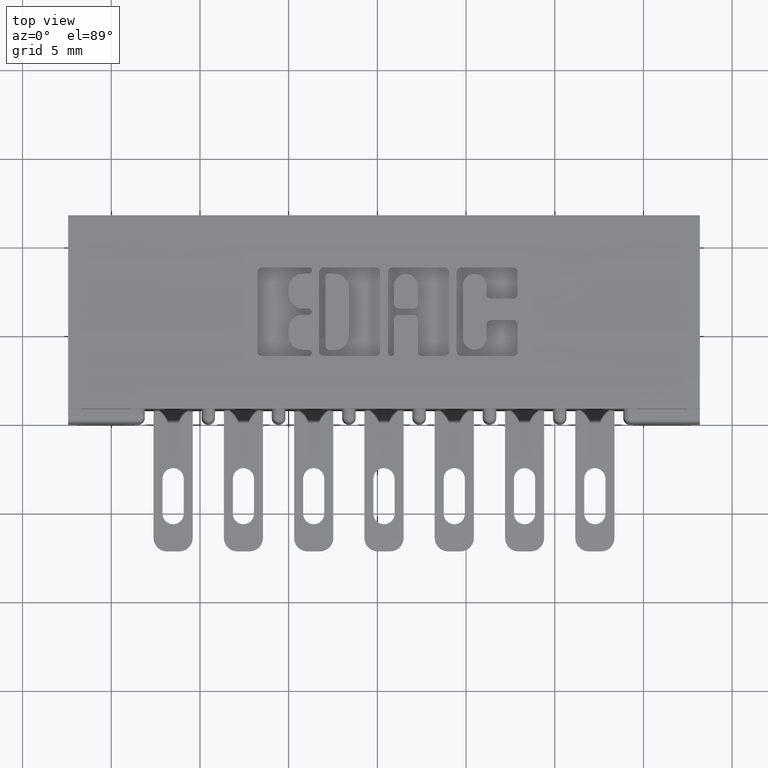
[diagram: clean part render]
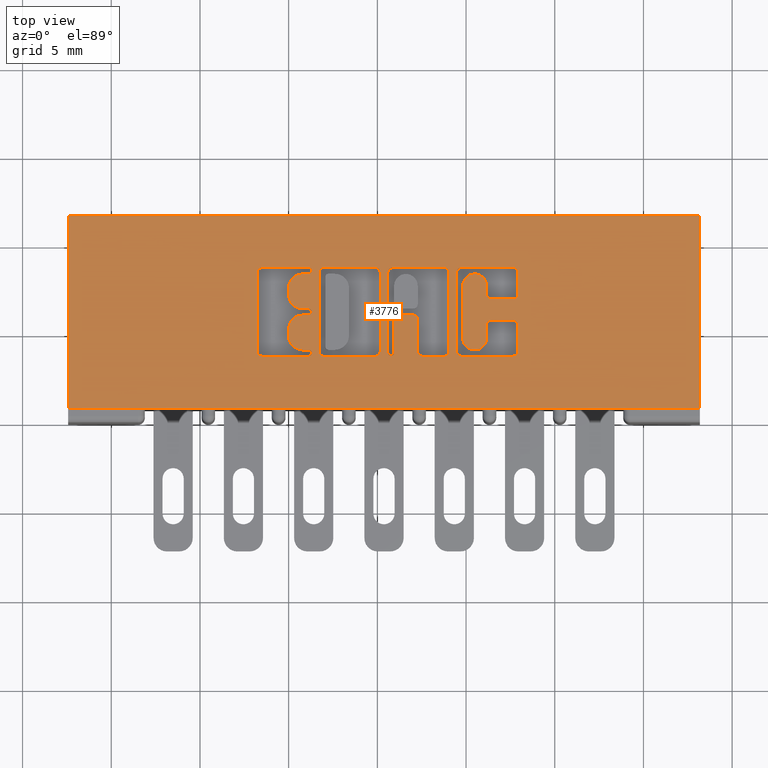
[diagram: same view with one face highlighted and labeled with its STEP entity id]
A machine part, top view. The second image highlights one B-rep face of the part: STEP entity #3776.
In plain terms, the highlighted planar face has unit normal (0, 0, -1).
Its self-contained STEP definition (entity closure, byte-faithful):
#30 = CARTESIAN_POINT ( 'NONE',  ( -0.0000000000000000000, 0.3299147637527387600, 0.0000000000000000000 ) ) ;
#53 = VERTEX_POINT ( 'NONE', #9856 ) ;
#116 = ORIENTED_EDGE ( 'NONE', *, *, #10471, .T. ) ;
#126 = ORIENTED_EDGE ( 'NONE', *, *, #1045, .F. ) ;
#162 = AXIS2_PLACEMENT_3D ( 'NONE', #9851, #6609, #9423 ) ;
#172 = DIRECTION ( 'NONE',  ( 1.000000000000000000, 0.0000000000000000000, 0.0000000000000000000 ) ) ;
#189 = DIRECTION ( 'NONE',  ( -1.000000000000000000, 0.0000000000000000000, 0.0000000000000000000 ) ) ;
#204 = AXIS2_PLACEMENT_3D ( 'NONE', #4688, #6850, #5149 ) ;
#245 = CARTESIAN_POINT ( 'NONE',  ( -0.0000000000000000000, 0.1473432979619862200, 0.0000000000000000000 ) ) ;
#246 = ORIENTED_EDGE ( 'NONE', *, *, #251, .T. ) ;
#249 = CARTESIAN_POINT ( 'NONE',  ( 0.8186370600050839600, 0.2386290308573598400, 0.0000000000000000000 ) ) ;
#251 = EDGE_CURVE ( 'NONE', #10532, #3573, #2536, .T. ) ;
#267 = AXIS2_PLACEMENT_3D ( 'NONE', #6127, #6198, #9625 ) ;
#290 = VERTEX_POINT ( 'NONE', #6991 ) ;
#296 = DIRECTION ( 'NONE',  ( 1.000000000000000000, 0.0000000000000000000, 0.0000000000000000000 ) ) ;
#321 = CARTESIAN_POINT ( 'NONE',  ( 0.8186370600051253700, 0.3299147637527387600, 0.0000000000000000000 ) ) ;
#342 = DIRECTION ( 'NONE',  ( -0.0000000000000000000, 1.000000000000000000, -0.0000000000000000000 ) ) ;
#356 = VERTEX_POINT ( 'NONE', #7784 ) ;
#357 = DIRECTION ( 'NONE',  ( -0.0000000000000000000, 0.0000000000000000000, 1.000000000000000000 ) ) ;
#387 = CARTESIAN_POINT ( 'NONE',  ( 0.8186370600050839600, 0.2837811137948613700, 0.0000000000000000000 ) ) ;
#397 = VERTEX_POINT ( 'NONE', #4811 ) ;
#403 = VERTEX_POINT ( 'NONE', #2986 ) ;
#427 = ORIENTED_EDGE ( 'NONE', *, *, #2236, .F. ) ;
#437 = DIRECTION ( 'NONE',  ( 1.000000000000000000, 0.0000000000000000000, 0.0000000000000000000 ) ) ;
#452 = DIRECTION ( 'NONE',  ( -0.0000000000000000000, 0.0000000000000000000, 1.000000000000000000 ) ) ;
#456 = CARTESIAN_POINT ( 'NONE',  ( 1.285862961706131900, 0.3338410318342139900, 0.0000000000000000000 ) ) ;
#469 = CARTESIAN_POINT ( 'NONE',  ( 0.8321336065353512900, 0.3367857328953892700, 0.0000000000000000000 ) ) ;
#474 = DIRECTION ( 'NONE',  ( -0.0000000000000000000, 0.0000000000000000000, 1.000000000000000000 ) ) ;
#524 = CARTESIAN_POINT ( 'NONE',  ( -0.0000000000000000000, 0.1473432979619862200, 0.0000000000000000000 ) ) ;
#533 = CARTESIAN_POINT ( 'NONE',  ( 0.8549550397591692000, 0.0000000000000000000, 0.0000000000000000000 ) ) ;
#632 = DIRECTION ( 'NONE',  ( 0.0000000000000000000, -1.000000000000000000, 0.0000000000000000000 ) ) ;
#651 = CARTESIAN_POINT ( 'NONE',  ( -8.177847276076834400E-015, 0.2386290308573163500, 0.0000000000000000000 ) ) ;
#670 = EDGE_CURVE ( 'NONE', #5741, #8689, #948, .T. ) ;
#675 = EDGE_CURVE ( 'NONE', #8563, #10460, #958, .T. ) ;
#693 = ORIENTED_EDGE ( 'NONE', *, *, #10239, .F. ) ;
#707 = DIRECTION ( 'NONE',  ( -1.000000000000000000, 0.0000000000000000000, 0.0000000000000000000 ) ) ;
#717 = CARTESIAN_POINT ( 'NONE',  ( 1.170038053301299500, 0.3338410318342131500, 0.0000000000000000000 ) ) ;
#726 = ORIENTED_EDGE ( 'NONE', *, *, #7959, .F. ) ;
#745 = ORIENTED_EDGE ( 'NONE', *, *, #9064, .T. ) ;
#762 = ORIENTED_EDGE ( 'NONE', *, *, #675, .F. ) ;
#780 = ORIENTED_EDGE ( 'NONE', *, *, #9626, .F. ) ;
#791 = AXIS2_PLACEMENT_3D ( 'NONE', #9205, #2286, #8860 ) ;
#799 = DIRECTION ( 'NONE',  ( -1.000000000000000000, 0.0000000000000000000, 0.0000000000000000000 ) ) ;
#814 = DIRECTION ( 'NONE',  ( -0.0000000000000000000, 0.0000000000000000000, 1.000000000000000000 ) ) ;
#819 = ORIENTED_EDGE ( 'NONE', *, *, #4571, .F. ) ;
#834 = VERTEX_POINT ( 'NONE', #5303 ) ;
#865 = DIRECTION ( 'NONE',  ( 1.000000000000000000, 0.0000000000000000000, 0.0000000000000000000 ) ) ;
#869 = DIRECTION ( 'NONE',  ( 1.000000000000000000, 0.0000000000000000000, 0.0000000000000000000 ) ) ;
#870 = CARTESIAN_POINT ( 'NONE',  ( 0.2979999999999999900, 0.03100000000000000000, 0.0000000000000000000 ) ) ;
#872 = ORIENTED_EDGE ( 'NONE', *, *, #10657, .T. ) ;
#882 = VECTOR ( 'NONE', #9310, 39.37007874015748100 ) ;
#887 = DIRECTION ( 'NONE',  ( -0.0000000000000000000, 0.0000000000000000000, 1.000000000000000000 ) ) ;
#896 = CIRCLE ( 'NONE', #5847, 0.02625691779518036400 ) ;
#904 = DIRECTION ( 'NONE',  ( 1.000000000000000000, 0.0000000000000000000, 0.0000000000000000000 ) ) ;
#906 = DIRECTION ( 'NONE',  ( -0.0000000000000000000, 0.0000000000000000000, 1.000000000000000000 ) ) ;
#912 = AXIS2_PLACEMENT_3D ( 'NONE', #9646, #474, #9337 ) ;
#914 = VECTOR ( 'NONE', #869, 39.37007874015748100 ) ;
#928 = CARTESIAN_POINT ( 'NONE',  ( 0.8321336065353512900, 0.3367857328953892700, 0.0000000000000000000 ) ) ;
#948 = LINE ( 'NONE', #524, #914 ) ;
#952 = VERTEX_POINT ( 'NONE', #2714 ) ;
#958 = LINE ( 'NONE', #1111, #971 ) ;
#961 = DIRECTION ( 'NONE',  ( 1.000000000000000000, 0.0000000000000000000, 0.0000000000000000000 ) ) ;
#971 = VECTOR ( 'NONE', #707, 39.37007874015748100 ) ;
#986 = DIRECTION ( 'NONE',  ( -0.0000000000000000000, 0.0000000000000000000, 1.000000000000000000 ) ) ;
#1001 = ORIENTED_EDGE ( 'NONE', *, *, #9613, .T. ) ;
#1006 = CARTESIAN_POINT ( 'NONE',  ( 1.143044960240806600, 0.1571589681657839000, 0.0000000000000000000 ) ) ;
#1014 = ORIENTED_EDGE ( 'NONE', *, *, #3350, .T. ) ;
#1026 = VERTEX_POINT ( 'NONE', #8227 ) ;
#1028 = ORIENTED_EDGE ( 'NONE', *, *, #10087, .T. ) ;
#1045 = EDGE_CURVE ( 'NONE', #4047, #3573, #6751, .T. ) ;
#1068 = ORIENTED_EDGE ( 'NONE', *, *, #8806, .T. ) ;
#1072 = VECTOR ( 'NONE', #799, 39.37007874015748100 ) ;
#1088 = DIRECTION ( 'NONE',  ( -0.0000000000000000000, 0.0000000000000000000, 1.000000000000000000 ) ) ;
#1092 = CARTESIAN_POINT ( 'NONE',  ( 0.8186370600050839600, 0.2072188862052035700, 0.0000000000000000000 ) ) ;
#1111 = CARTESIAN_POINT ( 'NONE',  ( 0.0000000000000000000, 0.3436567020380540400, 0.0000000000000000000 ) ) ;
#1130 = CARTESIAN_POINT ( 'NONE',  ( 1.083660155507788000, 0.1571589681657908600, 0.0000000000000000000 ) ) ;
#1149 = CARTESIAN_POINT ( 'NONE',  ( 1.285862961706167000, 0.2744562271012366800, 0.0000000000000000000 ) ) ;
#1174 = DIRECTION ( 'NONE',  ( 1.000000000000000000, 0.0000000000000000000, 0.0000000000000000000 ) ) ;
#1177 = CARTESIAN_POINT ( 'NONE',  ( 0.0000000000000000000, 0.2523709691426868600, 0.0000000000000000000 ) ) ;
#1180 = LINE ( 'NONE', #10487, #8166 ) ;
#1185 = CARTESIAN_POINT ( 'NONE',  ( 0.0000000000000000000, 0.4600000000000000200, 0.0000000000000000000 ) ) ;
#1189 = DIRECTION ( 'NONE',  ( 1.000000000000000000, 0.0000000000000000000, 0.0000000000000000000 ) ) ;
#1202 = AXIS2_PLACEMENT_3D ( 'NONE', #8207, #10767, #6965 ) ;
#1216 = CARTESIAN_POINT ( 'NONE',  ( 0.7180264404161154100, 0.1571589681657929700, 0.0000000000000000000 ) ) ;
#1227 = DIRECTION ( 'NONE',  ( -1.000000000000000000, 0.0000000000000000000, 0.0000000000000000000 ) ) ;
#1238 = VECTOR ( 'NONE', #5711, 39.37007874015748100 ) ;
#1240 = CARTESIAN_POINT ( 'NONE',  ( 0.0000000000000000000, 0.1473432979619876400, 0.0000000000000000000 ) ) ;
#1256 = DIRECTION ( 'NONE',  ( -0.0000000000000000000, 0.0000000000000000000, 1.000000000000000000 ) ) ;
#1271 = DIRECTION ( 'NONE',  ( -1.000000000000000000, -0.0000000000000000000, -0.0000000000000000000 ) ) ;
#1280 = LINE ( 'NONE', #10740, #9913 ) ;
#1283 = CIRCLE ( 'NONE', #1894, 0.03141014465221578900 ) ;
#1307 = CARTESIAN_POINT ( 'NONE',  ( 1.998000000000000000, 0.03100000000000000000, 0.0000000000000000000 ) ) ;
#1310 = AXIS2_PLACEMENT_3D ( 'NONE', #5151, #5341, #5245 ) ;
#1313 = VERTEX_POINT ( 'NONE', #5250 ) ;
#1316 = ORIENTED_EDGE ( 'NONE', *, *, #2542, .T. ) ;
#1342 = DIRECTION ( 'NONE',  ( 1.000000000000000000, 0.0000000000000000000, 0.0000000000000000000 ) ) ;
#1365 = DIRECTION ( 'NONE',  ( -0.0000000000000000000, 0.0000000000000000000, 1.000000000000000000 ) ) ;
#1383 = CARTESIAN_POINT ( 'NONE',  ( 0.8321336065353099900, 0.2455000000000233700, 0.0000000000000000000 ) ) ;
#1485 = CARTESIAN_POINT ( 'NONE',  ( 1.007588711428330800, 0.0000000000000000000, 0.0000000000000000000 ) ) ;
#1488 = CARTESIAN_POINT ( 'NONE',  ( 0.0000000000000000000, 0.4600000000000000200, 0.0000000000000000000 ) ) ;
#1518 = ORIENTED_EDGE ( 'NONE', *, *, #9062, .F. ) ;
#1539 = VERTEX_POINT ( 'NONE', #1644 ) ;
#1542 = VERTEX_POINT ( 'NONE', #1713 ) ;
#1549 = CARTESIAN_POINT ( 'NONE',  ( 1.133229290037010500, 0.1571589681657839000, 0.0000000000000000000 ) ) ;
#1570 = ORIENTED_EDGE ( 'NONE', *, *, #8645, .F. ) ;
#1587 = ORIENTED_EDGE ( 'NONE', *, *, #4452, .F. ) ;
#1595 = AXIS2_PLACEMENT_3D ( 'NONE', #6478, #6474, #6441 ) ;
#1610 = AXIS2_PLACEMENT_3D ( 'NONE', #8778, #10398, #10426 ) ;
#1640 = VECTOR ( 'NONE', #8748, 39.37007874015748100 ) ;
#1644 = CARTESIAN_POINT ( 'NONE',  ( 1.236293827176977400, 0.2744562271012366300, 0.0000000000000000000 ) ) ;
#1648 = CARTESIAN_POINT ( 'NONE',  ( 0.7872269153529095600, 0.2985046191005228400, 0.0000000000000000000 ) ) ;
#1685 = DIRECTION ( 'NONE',  ( 1.000000000000000000, 0.0000000000000000000, 0.0000000000000000000 ) ) ;
#1713 = CARTESIAN_POINT ( 'NONE',  ( 1.295678631909972000, 0.2842718973050416500, 0.0000000000000000000 ) ) ;
#1735 = AXIS2_PLACEMENT_3D ( 'NONE', #9575, #9576, #9823 ) ;
#1738 = ORIENTED_EDGE ( 'NONE', *, *, #3073, .F. ) ;
#1739 = DIRECTION ( 'NONE',  ( 0.0000000000000000000, 1.000000000000000000, -0.0000000000000000000 ) ) ;
#1762 = ORIENTED_EDGE ( 'NONE', *, *, #9030, .T. ) ;
#1796 = LINE ( 'NONE', #245, #10419 ) ;
#1815 = CARTESIAN_POINT ( 'NONE',  ( 1.285862961706168300, 0.3436567020380540400, 0.0000000000000000000 ) ) ;
#1819 = CARTESIAN_POINT ( 'NONE',  ( 1.073844485303984600, 0.0000000000000000000, 0.0000000000000000000 ) ) ;
#1827 = DIRECTION ( 'NONE',  ( 1.000000000000000000, 0.0000000000000000000, 0.0000000000000000000 ) ) ;
#1858 = AXIS2_PLACEMENT_3D ( 'NONE', #10858, #2339, #9704 ) ;
#1894 = AXIS2_PLACEMENT_3D ( 'NONE', #2338, #2336, #2321 ) ;
#1896 = CIRCLE ( 'NONE', #1310, 0.006870969142663458500 ) ;
#1899 = AXIS2_PLACEMENT_3D ( 'NONE', #7260, #7248, #8329 ) ;
#1951 = VECTOR ( 'NONE', #9911, 39.37007874015748100 ) ;
#2021 = CARTESIAN_POINT ( 'NONE',  ( 1.143044960240806600, 0.0000000000000000000, 0.0000000000000000000 ) ) ;
#2063 = AXIS2_PLACEMENT_3D ( 'NONE', #9225, #9215, #9214 ) ;
#2087 = VERTEX_POINT ( 'NONE', #6036 ) ;
#2110 = CARTESIAN_POINT ( 'NONE',  ( 1.170038053301265300, 0.1473432979619862200, 0.0000000000000000000 ) ) ;
#2124 = VERTEX_POINT ( 'NONE', #5079 ) ;
#2142 = CARTESIAN_POINT ( 'NONE',  ( 0.9805956183678620200, 0.1473432979619862200, 0.0000000000000000000 ) ) ;
#2178 = AXIS2_PLACEMENT_3D ( 'NONE', #2890, #2873, #3507 ) ;
#2180 = CARTESIAN_POINT ( 'NONE',  ( -0.0000000000000000000, 0.3436567020380096300, 0.0000000000000000000 ) ) ;
#2194 = VERTEX_POINT ( 'NONE', #4842 ) ;
#2236 = EDGE_CURVE ( 'NONE', #10532, #3562, #8177, .T. ) ;
#2252 = ORIENTED_EDGE ( 'NONE', *, *, #8629, .F. ) ;
#2286 = DIRECTION ( 'NONE',  ( -0.0000000000000000000, 0.0000000000000000000, 1.000000000000000000 ) ) ;
#2321 = DIRECTION ( 'NONE',  ( 1.000000000000000000, 0.0000000000000000000, 0.0000000000000000000 ) ) ;
#2322 = VECTOR ( 'NONE', #632, 39.37007874015748100 ) ;
#2336 = DIRECTION ( 'NONE',  ( -0.0000000000000000000, 0.0000000000000000000, 1.000000000000000000 ) ) ;
#2338 = CARTESIAN_POINT ( 'NONE',  ( 0.8186370600051253700, 0.2985046191005228400, 0.0000000000000000000 ) ) ;
#2339 = DIRECTION ( 'NONE',  ( -0.0000000000000000000, 0.0000000000000000000, 1.000000000000000000 ) ) ;
#2478 = VECTOR ( 'NONE', #4221, 39.37007874015748100 ) ;
#2526 = VECTOR ( 'NONE', #10756, 39.37007874015748100 ) ;
#2536 = LINE ( 'NONE', #1485, #2526 ) ;
#2542 = EDGE_CURVE ( 'NONE', #4886, #356, #10561, .T. ) ;
#2561 = ORIENTED_EDGE ( 'NONE', *, *, #7836, .T. ) ;
#2631 = AXIS2_PLACEMENT_3D ( 'NONE', #1185, #3412, #4581 ) ;
#2714 = CARTESIAN_POINT ( 'NONE',  ( 1.133229290037010500, 0.1473432979619876400, 0.0000000000000000000 ) ) ;
#2734 = AXIS2_PLACEMENT_3D ( 'NONE', #456, #357, #296 ) ;
#2758 = AXIS2_PLACEMENT_3D ( 'NONE', #717, #887, #865 ) ;
#2782 = AXIS2_PLACEMENT_3D ( 'NONE', #928, #906, #1174 ) ;
#2824 = AXIS2_PLACEMENT_3D ( 'NONE', #9428, #9329, #9323 ) ;
#2835 = DIRECTION ( 'NONE',  ( 0.0000000000000000000, -1.000000000000000000, 0.0000000000000000000 ) ) ;
#2853 = LINE ( 'NONE', #4689, #7279 ) ;
#2873 = DIRECTION ( 'NONE',  ( -0.0000000000000000000, 0.0000000000000000000, 1.000000000000000000 ) ) ;
#2874 = EDGE_CURVE ( 'NONE', #7382, #9115, #10633, .T. ) ;
#2890 = CARTESIAN_POINT ( 'NONE',  ( 0.8647707099630100900, 0.3338410318342131500, 0.0000000000000000000 ) ) ;
#2920 = VERTEX_POINT ( 'NONE', #1648 ) ;
#2933 = DIRECTION ( 'NONE',  ( 1.000000000000000000, 0.0000000000000000000, 0.0000000000000000000 ) ) ;
#2968 = VERTEX_POINT ( 'NONE', #8200 ) ;
#2981 = DIRECTION ( 'NONE',  ( 1.000000000000000000, 0.0000000000000000000, 0.0000000000000000000 ) ) ;
#2986 = CARTESIAN_POINT ( 'NONE',  ( 1.064028815100188200, 0.2386290308573528200, 0.0000000000000000000 ) ) ;
#3001 = VECTOR ( 'NONE', #1271, 39.37007874015748100 ) ;
#3061 = VERTEX_POINT ( 'NONE', #10892 ) ;
#3073 = EDGE_CURVE ( 'NONE', #4886, #3442, #5454, .T. ) ;
#3087 = CARTESIAN_POINT ( 'NONE',  ( 1.285862961706153000, 0.2170345564089734600, 0.0000000000000000000 ) ) ;
#3135 = CARTESIAN_POINT ( 'NONE',  ( 0.7180264404161154100, 0.0000000000000000000, 0.0000000000000000000 ) ) ;
#3152 = VERTEX_POINT ( 'NONE', #9336 ) ;
#3181 = EDGE_LOOP ( 'NONE', ( #745, #693, #3195, #2252, #1762, #1738, #1316, #1068, #1028, #872, #1014, #427, #246, #126 ) ) ;
#3195 = ORIENTED_EDGE ( 'NONE', *, *, #10072, .T. ) ;
#3227 = VERTEX_POINT ( 'NONE', #4652 ) ;
#3229 = CARTESIAN_POINT ( 'NONE',  ( 1.295678631909940300, 0.0000000000000000000, 0.0000000000000000000 ) ) ;
#3348 = DIRECTION ( 'NONE',  ( 1.000000000000000000, 0.0000000000000000000, 0.0000000000000000000 ) ) ;
#3350 = EDGE_CURVE ( 'NONE', #6254, #3562, #2853, .T. ) ;
#3358 = VERTEX_POINT ( 'NONE', #9598 ) ;
#3366 = VECTOR ( 'NONE', #2835, 39.37007874015748100 ) ;
#3412 = DIRECTION ( 'NONE',  ( 0.0000000000000000000, 0.0000000000000000000, -1.000000000000000000 ) ) ;
#3442 = VERTEX_POINT ( 'NONE', #8676 ) ;
#3507 = DIRECTION ( 'NONE',  ( 1.000000000000000000, 0.0000000000000000000, 0.0000000000000000000 ) ) ;
#3538 = LINE ( 'NONE', #5669, #7763 ) ;
#3562 = VERTEX_POINT ( 'NONE', #10461 ) ;
#3573 = VERTEX_POINT ( 'NONE', #10737 ) ;
#3703 = VERTEX_POINT ( 'NONE', #1216 ) ;
#3715 = CARTESIAN_POINT ( 'NONE',  ( 0.8647707099629760000, 0.1473432979619862200, 0.0000000000000000000 ) ) ;
#3716 = CARTESIAN_POINT ( 'NONE',  ( 0.7278421106199379800, 0.3436567020380357200, 0.0000000000000000000 ) ) ;
#3776 = ADVANCED_FACE ( 'NONE', ( #4734, #4449, #6663, #8466, #6432 ), #5946, .F. ) ;
#3832 = VECTOR ( 'NONE', #9774, 39.37007874015748100 ) ;
#3862 = VERTEX_POINT ( 'NONE', #6608 ) ;
#3900 = CARTESIAN_POINT ( 'NONE',  ( -1.013135022034649200E-015, 0.1473432979619830100, 0.0000000000000000000 ) ) ;
#3925 = CARTESIAN_POINT ( 'NONE',  ( 0.7872269153529277700, 0.1924953808994934200, 0.0000000000000000000 ) ) ;
#3941 = DIRECTION ( 'NONE',  ( 1.000000000000000000, 0.0000000000000000000, 0.0000000000000000000 ) ) ;
#3949 = VERTEX_POINT ( 'NONE', #5856 ) ;
#3954 = VERTEX_POINT ( 'NONE', #7278 ) ;
#3959 = DIRECTION ( 'NONE',  ( 1.000000000000000000, 0.0000000000000000000, 0.0000000000000000000 ) ) ;
#3963 = VERTEX_POINT ( 'NONE', #249 ) ;
#3966 = DIRECTION ( 'NONE',  ( -0.0000000000000000000, 0.0000000000000000000, 1.000000000000000000 ) ) ;
#3995 = LINE ( 'NONE', #1177, #1072 ) ;
#4021 = DIRECTION ( 'NONE',  ( -0.0000000000000000000, 0.0000000000000000000, 1.000000000000000000 ) ) ;
#4047 = VERTEX_POINT ( 'NONE', #10296 ) ;
#4075 = DIRECTION ( 'NONE',  ( -1.000000000000000000, -1.189163988687022500E-013, 0.0000000000000000000 ) ) ;
#4090 = VERTEX_POINT ( 'NONE', #7559 ) ;
#4100 = DIRECTION ( 'NONE',  ( -0.0000000000000000000, 0.0000000000000000000, 1.000000000000000000 ) ) ;
#4123 = CARTESIAN_POINT ( 'NONE',  ( 0.8390045756779976900, 0.1542142671046509700, 0.0000000000000000000 ) ) ;
#4126 = CARTESIAN_POINT ( 'NONE',  ( 0.0000000000000000000, 0.3436567020380357200, 0.0000000000000000000 ) ) ;
#4144 = EDGE_CURVE ( 'NONE', #9149, #2087, #1796, .T. ) ;
#4158 = VERTEX_POINT ( 'NONE', #5464 ) ;
#4177 = CARTESIAN_POINT ( 'NONE',  ( 1.236293827176966800, 0.2170345564089726000, 0.0000000000000000000 ) ) ;
#4188 = CARTESIAN_POINT ( 'NONE',  ( 1.295678631909940300, 0.2170345564089734600, 0.0000000000000000000 ) ) ;
#4206 = CIRCLE ( 'NONE', #267, 0.009815670203806345400 ) ;
#4218 = VERTEX_POINT ( 'NONE', #6530 ) ;
#4221 = DIRECTION ( 'NONE',  ( -1.000000000000000000, 0.0000000000000000000, 0.0000000000000000000 ) ) ;
#4237 = CARTESIAN_POINT ( 'NONE',  ( 1.073844485303984600, 0.1571589681657908600, 0.0000000000000000000 ) ) ;
#4238 = CARTESIAN_POINT ( 'NONE',  ( 0.9805956183678961000, 0.3436567020380540400, 0.0000000000000000000 ) ) ;
#4279 = VERTEX_POINT ( 'NONE', #7710 ) ;
#4295 = DIRECTION ( 'NONE',  ( -0.0000000000000000000, 0.0000000000000000000, 1.000000000000000000 ) ) ;
#4314 = CARTESIAN_POINT ( 'NONE',  ( 0.7278421106199379800, 0.3338410318342131500, 0.0000000000000000000 ) ) ;
#4362 = LINE ( 'NONE', #7667, #6594 ) ;
#4369 = DIRECTION ( 'NONE',  ( 1.000000000000000000, 6.876017002796114900E-015, 0.0000000000000000000 ) ) ;
#4380 = DIRECTION ( 'NONE',  ( 0.0000000000000000000, -1.000000000000000000, 0.0000000000000000000 ) ) ;
#4437 = LINE ( 'NONE', #8782, #1640 ) ;
#4449 = FACE_BOUND ( 'NONE', #8232, .T. ) ;
#4452 = EDGE_CURVE ( 'NONE', #5908, #397, #4990, .T. ) ;
#4455 = EDGE_CURVE ( 'NONE', #7587, #6303, #10663, .T. ) ;
#4467 = EDGE_CURVE ( 'NONE', #3703, #3949, #6877, .T. ) ;
#4488 = EDGE_CURVE ( 'NONE', #1539, #8767, #10308, .T. ) ;
#4491 = DIRECTION ( 'NONE',  ( 1.000000000000000000, 0.0000000000000000000, 0.0000000000000000000 ) ) ;
#4568 = AXIS2_PLACEMENT_3D ( 'NONE', #387, #452, #437 ) ;
#4569 = EDGE_CURVE ( 'NONE', #8767, #1542, #10798, .T. ) ;
#4571 = EDGE_CURVE ( 'NONE', #6303, #1539, #7327, .T. ) ;
#4581 = DIRECTION ( 'NONE',  ( -1.000000000000000000, 0.0000000000000000000, -0.0000000000000000000 ) ) ;
#4651 = EDGE_CURVE ( 'NONE', #53, #6356, #1180, .T. ) ;
#4652 = CARTESIAN_POINT ( 'NONE',  ( 1.160222383097458500, 0.1571589681657929700, 0.0000000000000000000 ) ) ;
#4665 = EDGE_CURVE ( 'NONE', #6908, #3152, #1896, .T. ) ;
#4688 = CARTESIAN_POINT ( 'NONE',  ( 0.8321336065353355200, 0.1542142671046509700, 0.0000000000000000000 ) ) ;
#4689 = CARTESIAN_POINT ( 'NONE',  ( 1.021330649713647000, 0.0000000000000000000, 0.0000000000000000000 ) ) ;
#4711 = EDGE_CURVE ( 'NONE', #7587, #6356, #7459, .T. ) ;
#4734 = FACE_BOUND ( 'NONE', #4767, .T. ) ;
#4767 = EDGE_LOOP ( 'NONE', ( #8060, #8026, #819, #9283, #7291, #7697, #2561, #8010, #8000, #7979, #7839, #7789, #7731, #7678, #8962, #8862, #7484, #8874, #8578, #8793 ) ) ;
#4811 = CARTESIAN_POINT ( 'NONE',  ( 0.8321336064154143400, 0.1610852362473132500, 0.0000000000000000000 ) ) ;
#4842 = CARTESIAN_POINT ( 'NONE',  ( 1.031146319917450200, 0.2386290308573516800, 0.0000000000000000000 ) ) ;
#4846 = AXIS2_PLACEMENT_3D ( 'NONE', #1383, #814, #1827 ) ;
#4850 = AXIS2_PLACEMENT_3D ( 'NONE', #7125, #986, #961 ) ;
#4853 = EDGE_CURVE ( 'NONE', #8689, #5194, #9544, .T. ) ;
#4865 = AXIS2_PLACEMENT_3D ( 'NONE', #1092, #1088, #1189 ) ;
#4868 = EDGE_CURVE ( 'NONE', #5194, #1026, #10791, .T. ) ;
#4871 = VECTOR ( 'NONE', #1342, 39.37007874015748100 ) ;
#4877 = CARTESIAN_POINT ( 'NONE',  ( 0.8186370600051095000, 0.1924953808994934200, 0.0000000000000000000 ) ) ;
#4886 = VERTEX_POINT ( 'NONE', #4237 ) ;
#4888 = CARTESIAN_POINT ( 'NONE',  ( -1.915567620543286900E-014, 0.1610852362472142700, 0.0000000000000000000 ) ) ;
#4890 = EDGE_CURVE ( 'NONE', #1026, #8563, #7316, .T. ) ;
#4921 = EDGE_CURVE ( 'NONE', #9846, #3227, #4362, .T. ) ;
#4923 = EDGE_CURVE ( 'NONE', #8642, #3061, #8623, .T. ) ;
#4979 = DIRECTION ( 'NONE',  ( 0.0000000000000000000, 1.000000000000000000, -0.0000000000000000000 ) ) ;
#4990 = CIRCLE ( 'NONE', #1899, 0.006870969142662229500 ) ;
#5009 = AXIS2_PLACEMENT_3D ( 'NONE', #1549, #1365, #904 ) ;
#5028 = VECTOR ( 'NONE', #9601, 39.37007874015748100 ) ;
#5079 = CARTESIAN_POINT ( 'NONE',  ( 1.133229290037013800, 0.3436567020380096300, 0.0000000000000000000 ) ) ;
#5121 = EDGE_CURVE ( 'NONE', #2087, #10337, #4206, .T. ) ;
#5134 = AXIS2_PLACEMENT_3D ( 'NONE', #469, #1256, #172 ) ;
#5147 = CIRCLE ( 'NONE', #5134, 0.006870969142648433200 ) ;
#5149 = DIRECTION ( 'NONE',  ( 1.000000000000000000, 0.0000000000000000000, 0.0000000000000000000 ) ) ;
#5151 = CARTESIAN_POINT ( 'NONE',  ( 0.8321336065353099900, 0.2455000000000233700, 0.0000000000000000000 ) ) ;
#5166 = EDGE_CURVE ( 'NONE', #3862, #5908, #5969, .T. ) ;
#5194 = VERTEX_POINT ( 'NONE', #7502 ) ;
#5195 = AXIS2_PLACEMENT_3D ( 'NONE', #4314, #4295, #3941 ) ;
#5199 = ORIENTED_EDGE ( 'NONE', *, *, #7362, .F. ) ;
#5221 = ORIENTED_EDGE ( 'NONE', *, *, #5166, .F. ) ;
#5245 = DIRECTION ( 'NONE',  ( 1.000000000000000000, 0.0000000000000000000, 0.0000000000000000000 ) ) ;
#5250 = CARTESIAN_POINT ( 'NONE',  ( 1.226478156973178900, 0.2170345564089717100, 0.0000000000000000000 ) ) ;
#5255 = EDGE_CURVE ( 'NONE', #10337, #7390, #6351, .T. ) ;
#5275 = VECTOR ( 'NONE', #189, 39.37007874015748100 ) ;
#5288 = VECTOR ( 'NONE', #8995, 39.37007874015748100 ) ;
#5303 = CARTESIAN_POINT ( 'NONE',  ( 1.700000000000000000, 0.4600000000000000200, 0.0000000000000000000 ) ) ;
#5341 = DIRECTION ( 'NONE',  ( -0.0000000000000000000, 0.0000000000000000000, 1.000000000000000000 ) ) ;
#5444 = CIRCLE ( 'NONE', #2782, 0.006870969142648433200 ) ;
#5454 = CIRCLE ( 'NONE', #10047, 0.009815670203803340800 ) ;
#5455 = CARTESIAN_POINT ( 'NONE',  ( 1.021330649713647000, 0.2288133606535486300, 0.0000000000000000000 ) ) ;
#5464 = CARTESIAN_POINT ( 'NONE',  ( 0.8321336065353512900, 0.3299147637527387600, 0.0000000000000000000 ) ) ;
#5532 = ORIENTED_EDGE ( 'NONE', *, *, #7321, .F. ) ;
#5559 = LINE ( 'NONE', #2180, #9392 ) ;
#5570 = LINE ( 'NONE', #9059, #5288 ) ;
#5578 = DIRECTION ( 'NONE',  ( 1.000000000000000000, 0.0000000000000000000, 0.0000000000000000000 ) ) ;
#5594 = EDGE_CURVE ( 'NONE', #3061, #834, #9830, .T. ) ;
#5669 = CARTESIAN_POINT ( 'NONE',  ( 0.0000000000000000000, 0.3436567020380540400, 0.0000000000000000000 ) ) ;
#5711 = DIRECTION ( 'NONE',  ( 1.000000000000000000, 0.0000000000000000000, 0.0000000000000000000 ) ) ;
#5716 = CARTESIAN_POINT ( 'NONE',  ( 1.226478156973165800, 0.3036578454992628900, 0.0000000000000000000 ) ) ;
#5741 = VERTEX_POINT ( 'NONE', #3715 ) ;
#5759 = EDGE_CURVE ( 'NONE', #2968, #4279, #5444, .T. ) ;
#5809 = CIRCLE ( 'NONE', #4846, 0.006870969142663458500 ) ;
#5839 = VERTEX_POINT ( 'NONE', #1006 ) ;
#5847 = AXIS2_PLACEMENT_3D ( 'NONE', #10922, #10763, #10758 ) ;
#5856 = CARTESIAN_POINT ( 'NONE',  ( 0.7278421106199184400, 0.1473432979619880000, 0.0000000000000000000 ) ) ;
#5908 = VERTEX_POINT ( 'NONE', #4123 ) ;
#5934 = EDGE_CURVE ( 'NONE', #8889, #9067, #10770, .T. ) ;
#5935 = EDGE_CURVE ( 'NONE', #9084, #9846, #10621, .T. ) ;
#5946 = PLANE ( 'NONE',  #2631 ) ;
#5969 = CIRCLE ( 'NONE', #204, 0.006870969142662229500 ) ;
#6036 = CARTESIAN_POINT ( 'NONE',  ( 1.285862961706134100, 0.1473432979619862200, 0.0000000000000000000 ) ) ;
#6068 = CIRCLE ( 'NONE', #2178, 0.009815670203840902800 ) ;
#6127 = CARTESIAN_POINT ( 'NONE',  ( 1.285862961706134100, 0.1571589681657929700, 0.0000000000000000000 ) ) ;
#6171 = LINE ( 'NONE', #533, #3832 ) ;
#6198 = DIRECTION ( 'NONE',  ( -0.0000000000000000000, 0.0000000000000000000, 1.000000000000000000 ) ) ;
#6225 = EDGE_CURVE ( 'NONE', #10460, #3954, #6068, .T. ) ;
#6254 = VERTEX_POINT ( 'NONE', #5455 ) ;
#6294 = CARTESIAN_POINT ( 'NONE',  ( 1.226478156973178900, 0.1873421540424560200, 0.0000000000000000000 ) ) ;
#6303 = VERTEX_POINT ( 'NONE', #10824 ) ;
#6311 = CIRCLE ( 'NONE', #7729, 0.009815670203788042300 ) ;
#6318 = CARTESIAN_POINT ( 'NONE',  ( 0.8390045756779733700, 0.2455000000000233700, 0.0000000000000000000 ) ) ;
#6340 = AXIS2_PLACEMENT_3D ( 'NONE', #9689, #9699, #9708 ) ;
#6351 = LINE ( 'NONE', #3229, #10044 ) ;
#6356 = VERTEX_POINT ( 'NONE', #8165 ) ;
#6359 = VECTOR ( 'NONE', #10128, 39.37007874015748100 ) ;
#6391 = VERTEX_POINT ( 'NONE', #7509 ) ;
#6432 = FACE_BOUND ( 'NONE', #3181, .T. ) ;
#6441 = DIRECTION ( 'NONE',  ( 1.000000000000000000, 0.0000000000000000000, 0.0000000000000000000 ) ) ;
#6448 = DIRECTION ( 'NONE',  ( 1.000000000000000000, 0.0000000000000000000, 0.0000000000000000000 ) ) ;
#6474 = DIRECTION ( 'NONE',  ( -0.0000000000000000000, 0.0000000000000000000, 1.000000000000000000 ) ) ;
#6478 = CARTESIAN_POINT ( 'NONE',  ( 1.285862961706167000, 0.2842718973050416500, 0.0000000000000000000 ) ) ;
#6530 = CARTESIAN_POINT ( 'NONE',  ( 0.8186370600051095000, 0.1610852362473116400, 0.0000000000000000000 ) ) ;
#6551 = DIRECTION ( 'NONE',  ( -0.0000000000000000000, 0.0000000000000000000, 1.000000000000000000 ) ) ;
#6567 = CARTESIAN_POINT ( 'NONE',  ( 1.170038053301265300, 0.1571589681657929700, 0.0000000000000000000 ) ) ;
#6594 = VECTOR ( 'NONE', #4380, 39.37007874015748100 ) ;
#6608 = CARTESIAN_POINT ( 'NONE',  ( 0.8321336064154143400, 0.1473432979619887200, 0.0000000000000000000 ) ) ;
#6609 = DIRECTION ( 'NONE',  ( -0.0000000000000000000, 0.0000000000000000000, 1.000000000000000000 ) ) ;
#6616 = DIRECTION ( 'NONE',  ( 0.0000000000000000000, 1.000000000000000000, -0.0000000000000000000 ) ) ;
#6663 = FACE_OUTER_BOUND ( 'NONE', #10285, .T. ) ;
#6667 = CIRCLE ( 'NONE', #2824, 0.009815670203795690700 ) ;
#6723 = EDGE_CURVE ( 'NONE', #9067, #9084, #3538, .T. ) ;
#6751 = CIRCLE ( 'NONE', #6340, 0.009815670203796511200 ) ;
#6782 = CIRCLE ( 'NONE', #4865, 0.03141014465215624000 ) ;
#6789 = CIRCLE ( 'NONE', #7848, 0.009815670203806754800 ) ;
#6822 = CARTESIAN_POINT ( 'NONE',  ( 0.9904112885716689400, 0.0000000000000000000, 0.0000000000000000000 ) ) ;
#6850 = DIRECTION ( 'NONE',  ( -0.0000000000000000000, 0.0000000000000000000, 1.000000000000000000 ) ) ;
#6877 = CIRCLE ( 'NONE', #1858, 0.009815670203805798900 ) ;
#6908 = VERTEX_POINT ( 'NONE', #6318 ) ;
#6914 = ORIENTED_EDGE ( 'NONE', *, *, #7973, .F. ) ;
#6965 = DIRECTION ( 'NONE',  ( 1.000000000000000000, 0.0000000000000000000, 0.0000000000000000000 ) ) ;
#6991 = CARTESIAN_POINT ( 'NONE',  ( 0.8186370600050839600, 0.2523709691426868600, 0.0000000000000000000 ) ) ;
#7024 = ORIENTED_EDGE ( 'NONE', *, *, #5594, .F. ) ;
#7058 = ORIENTED_EDGE ( 'NONE', *, *, #4890, .F. ) ;
#7082 = VERTEX_POINT ( 'NONE', #6294 ) ;
#7125 = CARTESIAN_POINT ( 'NONE',  ( 1.064028815100187800, 0.2288133606535558100, 0.0000000000000000000 ) ) ;
#7144 = LINE ( 'NONE', #651, #5028 ) ;
#7226 = EDGE_CURVE ( 'NONE', #7390, #9810, #8822, .T. ) ;
#7248 = DIRECTION ( 'NONE',  ( -0.0000000000000000000, 0.0000000000000000000, 1.000000000000000000 ) ) ;
#7253 = LINE ( 'NONE', #4126, #2478 ) ;
#7260 = CARTESIAN_POINT ( 'NONE',  ( 0.8321336065353355200, 0.1542142671046509700, 0.0000000000000000000 ) ) ;
#7278 = CARTESIAN_POINT ( 'NONE',  ( 0.8549550397591692000, 0.3338410318342131500, 0.0000000000000000000 ) ) ;
#7279 = VECTOR ( 'NONE', #10629, 39.37007874015748100 ) ;
#7285 = EDGE_CURVE ( 'NONE', #3227, #9149, #6789, .T. ) ;
#7291 = ORIENTED_EDGE ( 'NONE', *, *, #4711, .T. ) ;
#7295 = AXIS2_PLACEMENT_3D ( 'NONE', #4877, #4021, #3348 ) ;
#7316 = CIRCLE ( 'NONE', #791, 0.009815670203841039800 ) ;
#7320 = EDGE_CURVE ( 'NONE', #9878, #1313, #6311, .T. ) ;
#7321 = EDGE_CURVE ( 'NONE', #3949, #3862, #8120, .T. ) ;
#7327 = CIRCLE ( 'NONE', #1610, 0.009815670203811535700 ) ;
#7362 = EDGE_CURVE ( 'NONE', #4090, #3703, #9401, .T. ) ;
#7382 = VERTEX_POINT ( 'NONE', #3925 ) ;
#7389 = EDGE_CURVE ( 'NONE', #7382, #4218, #7403, .T. ) ;
#7390 = VERTEX_POINT ( 'NONE', #4188 ) ;
#7392 = EDGE_CURVE ( 'NONE', #397, #4218, #10843, .T. ) ;
#7403 = CIRCLE ( 'NONE', #7295, 0.03141014465218178200 ) ;
#7405 = ORIENTED_EDGE ( 'NONE', *, *, #7392, .F. ) ;
#7459 = CIRCLE ( 'NONE', #1202, 0.02625691779517380600 ) ;
#7484 = ORIENTED_EDGE ( 'NONE', *, *, #5935, .F. ) ;
#7491 = DIRECTION ( 'NONE',  ( -1.000000000000000000, 0.0000000000000000000, 0.0000000000000000000 ) ) ;
#7502 = CARTESIAN_POINT ( 'NONE',  ( 0.9904112885716689400, 0.1571589681657929700, 0.0000000000000000000 ) ) ;
#7509 = CARTESIAN_POINT ( 'NONE',  ( 1.143044960240806600, 0.3338410318342039900, 0.0000000000000000000 ) ) ;
#7528 = EDGE_LOOP ( 'NONE', ( #7058, #9331, #9111, #7530, #9262, #780, #9195, #762 ) ) ;
#7530 = ORIENTED_EDGE ( 'NONE', *, *, #670, .F. ) ;
#7559 = CARTESIAN_POINT ( 'NONE',  ( 0.7180264404161154100, 0.3338410318342131500, 0.0000000000000000000 ) ) ;
#7587 = VERTEX_POINT ( 'NONE', #5716 ) ;
#7610 = ORIENTED_EDGE ( 'NONE', *, *, #5759, .F. ) ;
#7639 = LINE ( 'NONE', #1307, #3001 ) ;
#7667 = CARTESIAN_POINT ( 'NONE',  ( 1.160222383097458500, 0.0000000000000000000, 0.0000000000000000000 ) ) ;
#7678 = ORIENTED_EDGE ( 'NONE', *, *, #4144, .F. ) ;
#7697 = ORIENTED_EDGE ( 'NONE', *, *, #4651, .F. ) ;
#7710 = CARTESIAN_POINT ( 'NONE',  ( 0.8321336065353512900, 0.3436567020380357200, 0.0000000000000000000 ) ) ;
#7729 = AXIS2_PLACEMENT_3D ( 'NONE', #4177, #4100, #5578 ) ;
#7731 = ORIENTED_EDGE ( 'NONE', *, *, #5121, .F. ) ;
#7763 = VECTOR ( 'NONE', #7491, 39.37007874015748100 ) ;
#7784 = CARTESIAN_POINT ( 'NONE',  ( 1.073844485303984600, 0.2288133606535464600, 0.0000000000000000000 ) ) ;
#7789 = ORIENTED_EDGE ( 'NONE', *, *, #5255, .F. ) ;
#7836 = EDGE_CURVE ( 'NONE', #53, #7082, #896, .T. ) ;
#7839 = ORIENTED_EDGE ( 'NONE', *, *, #7226, .F. ) ;
#7848 = AXIS2_PLACEMENT_3D ( 'NONE', #6567, #6551, #6448 ) ;
#7852 = EDGE_CURVE ( 'NONE', #1313, #7082, #1280, .T. ) ;
#7873 = DIRECTION ( 'NONE',  ( 0.0000000000000000000, 1.000000000000000000, -0.0000000000000000000 ) ) ;
#7894 = CARTESIAN_POINT ( 'NONE',  ( 0.8321336064153888000, 0.2386290308573598400, 0.0000000000000000000 ) ) ;
#7919 = CARTESIAN_POINT ( 'NONE',  ( 1.236293827176966800, 0.2268502266127605800, 0.0000000000000000000 ) ) ;
#7959 = EDGE_CURVE ( 'NONE', #8585, #4090, #9270, .T. ) ;
#7973 = EDGE_CURVE ( 'NONE', #4279, #8585, #7253, .T. ) ;
#7975 = EDGE_CURVE ( 'NONE', #4158, #2968, #5147, .T. ) ;
#7979 = ORIENTED_EDGE ( 'NONE', *, *, #9434, .F. ) ;
#7994 = CARTESIAN_POINT ( 'NONE',  ( 1.700000000000000000, 0.0000000000000000000, 0.0000000000000000000 ) ) ;
#8000 = ORIENTED_EDGE ( 'NONE', *, *, #7320, .F. ) ;
#8010 = ORIENTED_EDGE ( 'NONE', *, *, #7852, .F. ) ;
#8013 = EDGE_CURVE ( 'NONE', #9619, #4158, #10760, .T. ) ;
#8026 = ORIENTED_EDGE ( 'NONE', *, *, #4488, .F. ) ;
#8040 = AXIS2_PLACEMENT_3D ( 'NONE', #3087, #3966, #3959 ) ;
#8060 = ORIENTED_EDGE ( 'NONE', *, *, #4569, .F. ) ;
#8120 = LINE ( 'NONE', #3900, #9809 ) ;
#8165 = CARTESIAN_POINT ( 'NONE',  ( 1.173964321382818400, 0.3036578459575325900, 0.0000000000000000000 ) ) ;
#8166 = VECTOR ( 'NONE', #10774, 39.37007874015748100 ) ;
#8169 = CARTESIAN_POINT ( 'NONE',  ( 0.7872269153529277700, 0.0000000000000000000, 0.0000000000000000000 ) ) ;
#8171 = CARTESIAN_POINT ( 'NONE',  ( 0.2979999999999999900, 0.0000000000000000000, 0.0000000000000000000 ) ) ;
#8174 = ORIENTED_EDGE ( 'NONE', *, *, #8013, .F. ) ;
#8177 = CIRCLE ( 'NONE', #162, 0.006870969142657995000 ) ;
#8200 = CARTESIAN_POINT ( 'NONE',  ( 0.8390045756779998000, 0.3367857328953892700, 0.0000000000000000000 ) ) ;
#8207 = CARTESIAN_POINT ( 'NONE',  ( 1.200221239177992100, 0.3036578459575325900, 0.0000000000000000000 ) ) ;
#8227 = CARTESIAN_POINT ( 'NONE',  ( 0.9904112885716689400, 0.3338410318342131500, 0.0000000000000000000 ) ) ;
#8232 = EDGE_LOOP ( 'NONE', ( #116, #9054, #1001, #1570, #9075, #10403, #8549, #8396, #8765, #8431, #7405, #1587, #5221, #5532, #10244, #5199, #726, #6914, #7610, #8823, #8174 ) ) ;
#8279 = VECTOR ( 'NONE', #1739, 39.37007874015748100 ) ;
#8329 = DIRECTION ( 'NONE',  ( 1.000000000000000000, 0.0000000000000000000, 0.0000000000000000000 ) ) ;
#8396 = ORIENTED_EDGE ( 'NONE', *, *, #8787, .T. ) ;
#8405 = ORIENTED_EDGE ( 'NONE', *, *, #4923, .F. ) ;
#8431 = ORIENTED_EDGE ( 'NONE', *, *, #7389, .T. ) ;
#8460 = CIRCLE ( 'NONE', #4568, 0.03141014465217440600 ) ;
#8466 = FACE_BOUND ( 'NONE', #7528, .T. ) ;
#8549 = ORIENTED_EDGE ( 'NONE', *, *, #9519, .F. ) ;
#8563 = VERTEX_POINT ( 'NONE', #4238 ) ;
#8578 = ORIENTED_EDGE ( 'NONE', *, *, #5934, .F. ) ;
#8585 = VERTEX_POINT ( 'NONE', #3716 ) ;
#8623 = LINE ( 'NONE', #8171, #6359 ) ;
#8629 = EDGE_CURVE ( 'NONE', #952, #5839, #10430, .T. ) ;
#8642 = VERTEX_POINT ( 'NONE', #870 ) ;
#8645 = EDGE_CURVE ( 'NONE', #3152, #290, #3995, .T. ) ;
#8676 = CARTESIAN_POINT ( 'NONE',  ( 1.083660155507785600, 0.1473432979619876400, 0.0000000000000000000 ) ) ;
#8689 = VERTEX_POINT ( 'NONE', #2142 ) ;
#8708 = CARTESIAN_POINT ( 'NONE',  ( 0.0000000000000000000, 0.2268502266127605800, 0.0000000000000000000 ) ) ;
#8748 = DIRECTION ( 'NONE',  ( 1.000000000000000000, 0.0000000000000000000, 0.0000000000000000000 ) ) ;
#8765 = ORIENTED_EDGE ( 'NONE', *, *, #2874, .F. ) ;
#8767 = VERTEX_POINT ( 'NONE', #1149 ) ;
#8778 = CARTESIAN_POINT ( 'NONE',  ( 1.236293827176977400, 0.2842718973050482600, 0.0000000000000000000 ) ) ;
#8782 = CARTESIAN_POINT ( 'NONE',  ( -0.0000000000000000000, 0.2386290308573598400, 0.0000000000000000000 ) ) ;
#8787 = EDGE_CURVE ( 'NONE', #3963, #9115, #6782, .T. ) ;
#8793 = ORIENTED_EDGE ( 'NONE', *, *, #9937, .F. ) ;
#8806 = EDGE_CURVE ( 'NONE', #356, #403, #10219, .T. ) ;
#8817 = CARTESIAN_POINT ( 'NONE',  ( 0.7872269153529095600, 0.2837811137948613700, 0.0000000000000000000 ) ) ;
#8822 = CIRCLE ( 'NONE', #8040, 0.009815670203787221800 ) ;
#8823 = ORIENTED_EDGE ( 'NONE', *, *, #7975, .F. ) ;
#8860 = DIRECTION ( 'NONE',  ( 1.000000000000000000, 0.0000000000000000000, 0.0000000000000000000 ) ) ;
#8862 = ORIENTED_EDGE ( 'NONE', *, *, #4921, .F. ) ;
#8874 = ORIENTED_EDGE ( 'NONE', *, *, #6723, .F. ) ;
#8889 = VERTEX_POINT ( 'NONE', #10690 ) ;
#8892 = DIRECTION ( 'NONE',  ( -0.0000000000000000000, 0.0000000000000000000, 1.000000000000000000 ) ) ;
#8938 = LINE ( 'NONE', #8708, #5275 ) ;
#8962 = ORIENTED_EDGE ( 'NONE', *, *, #7285, .F. ) ;
#8995 = DIRECTION ( 'NONE',  ( 0.0000000000000000000, 1.000000000000000000, -0.0000000000000000000 ) ) ;
#9026 = CARTESIAN_POINT ( 'NONE',  ( 0.7872269153529277700, 0.2072188862052035700, 0.0000000000000000000 ) ) ;
#9030 = EDGE_CURVE ( 'NONE', #952, #3442, #9799, .T. ) ;
#9041 = EDGE_CURVE ( 'NONE', #9496, #6908, #5809, .T. ) ;
#9054 = ORIENTED_EDGE ( 'NONE', *, *, #9633, .F. ) ;
#9059 = CARTESIAN_POINT ( 'NONE',  ( 1.295678631909972000, 0.0000000000000000000, 0.0000000000000000000 ) ) ;
#9062 = EDGE_CURVE ( 'NONE', #3358, #8642, #7639, .T. ) ;
#9064 = EDGE_CURVE ( 'NONE', #4047, #2124, #5559, .T. ) ;
#9067 = VERTEX_POINT ( 'NONE', #1815 ) ;
#9075 = ORIENTED_EDGE ( 'NONE', *, *, #4665, .F. ) ;
#9084 = VERTEX_POINT ( 'NONE', #10026 ) ;
#9086 = CARTESIAN_POINT ( 'NONE',  ( 0.8549550397591692000, 0.1571589681657929700, 0.0000000000000000000 ) ) ;
#9095 = VECTOR ( 'NONE', #7873, 39.37007874015748100 ) ;
#9111 = ORIENTED_EDGE ( 'NONE', *, *, #4853, .F. ) ;
#9115 = VERTEX_POINT ( 'NONE', #9026 ) ;
#9149 = VERTEX_POINT ( 'NONE', #2110 ) ;
#9155 = CARTESIAN_POINT ( 'NONE',  ( -0.0000000000000000000, 0.2744562271012366300, 0.0000000000000000000 ) ) ;
#9165 = VECTOR ( 'NONE', #4075, 39.37007874015748100 ) ;
#9195 = ORIENTED_EDGE ( 'NONE', *, *, #6225, .F. ) ;
#9205 = CARTESIAN_POINT ( 'NONE',  ( 0.9805956183678279400, 0.3338410318342129900, 0.0000000000000000000 ) ) ;
#9214 = DIRECTION ( 'NONE',  ( 1.000000000000000000, 0.0000000000000000000, 0.0000000000000000000 ) ) ;
#9215 = DIRECTION ( 'NONE',  ( -0.0000000000000000000, 0.0000000000000000000, 1.000000000000000000 ) ) ;
#9225 = CARTESIAN_POINT ( 'NONE',  ( 0.8647707099629760000, 0.1571589681657929700, 0.0000000000000000000 ) ) ;
#9262 = ORIENTED_EDGE ( 'NONE', *, *, #10279, .F. ) ;
#9270 = CIRCLE ( 'NONE', #5195, 0.009815670203822599700 ) ;
#9283 = ORIENTED_EDGE ( 'NONE', *, *, #4455, .F. ) ;
#9310 = DIRECTION ( 'NONE',  ( 0.0000000000000000000, 1.000000000000000000, -0.0000000000000000000 ) ) ;
#9323 = DIRECTION ( 'NONE',  ( 1.000000000000000000, 0.0000000000000000000, 0.0000000000000000000 ) ) ;
#9329 = DIRECTION ( 'NONE',  ( -0.0000000000000000000, 0.0000000000000000000, 1.000000000000000000 ) ) ;
#9331 = ORIENTED_EDGE ( 'NONE', *, *, #4868, .F. ) ;
#9336 = CARTESIAN_POINT ( 'NONE',  ( 0.8321336065353099900, 0.2523709691426868600, 0.0000000000000000000 ) ) ;
#9337 = DIRECTION ( 'NONE',  ( 1.000000000000000000, 0.0000000000000000000, 0.0000000000000000000 ) ) ;
#9359 = CARTESIAN_POINT ( 'NONE',  ( 1.295678631909940300, 0.1571589681657860100, 0.0000000000000000000 ) ) ;
#9392 = VECTOR ( 'NONE', #1685, 39.37007874015748100 ) ;
#9401 = LINE ( 'NONE', #3135, #3366 ) ;
#9418 = VECTOR ( 'NONE', #2981, 39.37007874015748100 ) ;
#9423 = DIRECTION ( 'NONE',  ( 1.000000000000000000, 0.0000000000000000000, 0.0000000000000000000 ) ) ;
#9428 = CARTESIAN_POINT ( 'NONE',  ( 1.133229290037011600, 0.3338410318342134300, 0.0000000000000000000 ) ) ;
#9434 = EDGE_CURVE ( 'NONE', #9810, #9878, #8938, .T. ) ;
#9486 = VERTEX_POINT ( 'NONE', #8817 ) ;
#9496 = VERTEX_POINT ( 'NONE', #7894 ) ;
#9504 = CIRCLE ( 'NONE', #1735, 0.009815670203803203800 ) ;
#9519 = EDGE_CURVE ( 'NONE', #3963, #9496, #4437, .T. ) ;
#9540 = CARTESIAN_POINT ( 'NONE',  ( 1.160222383097458500, 0.3338410318342131500, 0.0000000000000000000 ) ) ;
#9544 = CIRCLE ( 'NONE', #912, 0.009815670203806754800 ) ;
#9575 = CARTESIAN_POINT ( 'NONE',  ( 1.031146319917450200, 0.2288133606535486300, 0.0000000000000000000 ) ) ;
#9576 = DIRECTION ( 'NONE',  ( -0.0000000000000000000, 0.0000000000000000000, 1.000000000000000000 ) ) ;
#9588 = EDGE_CURVE ( 'NONE', #3358, #834, #10838, .T. ) ;
#9598 = CARTESIAN_POINT ( 'NONE',  ( 1.700000000000000000, 0.03100000000000000000, 0.0000000000000000000 ) ) ;
#9601 = DIRECTION ( 'NONE',  ( -1.000000000000000000, -3.427012734660361200E-014, 0.0000000000000000000 ) ) ;
#9605 = VECTOR ( 'NONE', #1227, 39.37007874015748100 ) ;
#9613 = EDGE_CURVE ( 'NONE', #9486, #290, #8460, .T. ) ;
#9617 = ORIENTED_EDGE ( 'NONE', *, *, #9588, .T. ) ;
#9618 = LINE ( 'NONE', #2021, #2322 ) ;
#9619 = VERTEX_POINT ( 'NONE', #321 ) ;
#9625 = DIRECTION ( 'NONE',  ( 1.000000000000000000, 0.0000000000000000000, 0.0000000000000000000 ) ) ;
#9626 = EDGE_CURVE ( 'NONE', #3954, #10300, #6171, .T. ) ;
#9633 = EDGE_CURVE ( 'NONE', #9486, #2920, #9897, .T. ) ;
#9646 = CARTESIAN_POINT ( 'NONE',  ( 0.9805956183678620200, 0.1571589681657929700, 0.0000000000000000000 ) ) ;
#9689 = CARTESIAN_POINT ( 'NONE',  ( 1.017404381632127400, 0.3338410318342131500, 0.0000000000000000000 ) ) ;
#9699 = DIRECTION ( 'NONE',  ( -0.0000000000000000000, 0.0000000000000000000, 1.000000000000000000 ) ) ;
#9704 = DIRECTION ( 'NONE',  ( 1.000000000000000000, 0.0000000000000000000, 0.0000000000000000000 ) ) ;
#9708 = DIRECTION ( 'NONE',  ( 1.000000000000000000, 0.0000000000000000000, 0.0000000000000000000 ) ) ;
#9734 = CARTESIAN_POINT ( 'NONE',  ( 1.285862961706156500, 0.2268502266127605800, 0.0000000000000000000 ) ) ;
#9774 = DIRECTION ( 'NONE',  ( 0.0000000000000000000, -1.000000000000000000, 0.0000000000000000000 ) ) ;
#9799 = LINE ( 'NONE', #1240, #9605 ) ;
#9809 = VECTOR ( 'NONE', #4369, 39.37007874015748100 ) ;
#9810 = VERTEX_POINT ( 'NONE', #9734 ) ;
#9823 = DIRECTION ( 'NONE',  ( 1.000000000000000000, 0.0000000000000000000, 0.0000000000000000000 ) ) ;
#9830 = LINE ( 'NONE', #1488, #9418 ) ;
#9846 = VERTEX_POINT ( 'NONE', #9540 ) ;
#9851 = CARTESIAN_POINT ( 'NONE',  ( 1.014459680570986900, 0.1542142671046509700, 0.0000000000000000000 ) ) ;
#9856 = CARTESIAN_POINT ( 'NONE',  ( 1.173964321382818400, 0.1873421540424560200, 0.0000000000000000000 ) ) ;
#9878 = VERTEX_POINT ( 'NONE', #7919 ) ;
#9879 = CARTESIAN_POINT ( 'NONE',  ( 1.226478156973165800, 0.0000000000000000000, 0.0000000000000000000 ) ) ;
#9897 = LINE ( 'NONE', #9962, #882 ) ;
#9911 = DIRECTION ( 'NONE',  ( 0.0000000000000000000, -1.000000000000000000, 0.0000000000000000000 ) ) ;
#9913 = VECTOR ( 'NONE', #10932, 39.37007874015748100 ) ;
#9937 = EDGE_CURVE ( 'NONE', #1542, #8889, #5570, .T. ) ;
#9962 = CARTESIAN_POINT ( 'NONE',  ( 0.7872269153529095600, 0.0000000000000000000, 0.0000000000000000000 ) ) ;
#10026 = CARTESIAN_POINT ( 'NONE',  ( 1.170038053301299500, 0.3436567020380540400, 0.0000000000000000000 ) ) ;
#10044 = VECTOR ( 'NONE', #4979, 39.37007874015748100 ) ;
#10047 = AXIS2_PLACEMENT_3D ( 'NONE', #1130, #8892, #2933 ) ;
#10072 = EDGE_CURVE ( 'NONE', #6391, #5839, #9618, .T. ) ;
#10087 = EDGE_CURVE ( 'NONE', #403, #2194, #7144, .T. ) ;
#10113 = VECTOR ( 'NONE', #342, 39.37007874015748100 ) ;
#10128 = DIRECTION ( 'NONE',  ( -0.0000000000000000000, 1.000000000000000000, -0.0000000000000000000 ) ) ;
#10219 = CIRCLE ( 'NONE', #4850, 0.009815670203796920600 ) ;
#10239 = EDGE_CURVE ( 'NONE', #6391, #2124, #6667, .T. ) ;
#10244 = ORIENTED_EDGE ( 'NONE', *, *, #4467, .F. ) ;
#10279 = EDGE_CURVE ( 'NONE', #10300, #5741, #10333, .T. ) ;
#10285 = EDGE_LOOP ( 'NONE', ( #1518, #9617, #7024, #8405 ) ) ;
#10296 = CARTESIAN_POINT ( 'NONE',  ( 1.017404381632127400, 0.3436567020380096300, 0.0000000000000000000 ) ) ;
#10300 = VERTEX_POINT ( 'NONE', #9086 ) ;
#10308 = LINE ( 'NONE', #9155, #1238 ) ;
#10333 = CIRCLE ( 'NONE', #2063, 0.009815670203806754800 ) ;
#10337 = VERTEX_POINT ( 'NONE', #9359 ) ;
#10398 = DIRECTION ( 'NONE',  ( -0.0000000000000000000, 0.0000000000000000000, 1.000000000000000000 ) ) ;
#10403 = ORIENTED_EDGE ( 'NONE', *, *, #9041, .F. ) ;
#10419 = VECTOR ( 'NONE', #4491, 39.37007874015748100 ) ;
#10426 = DIRECTION ( 'NONE',  ( 1.000000000000000000, 0.0000000000000000000, 0.0000000000000000000 ) ) ;
#10430 = CIRCLE ( 'NONE', #5009, 0.009815670203796237100 ) ;
#10456 = VECTOR ( 'NONE', #6616, 39.37007874015748100 ) ;
#10460 = VERTEX_POINT ( 'NONE', #10728 ) ;
#10461 = CARTESIAN_POINT ( 'NONE',  ( 1.021330649713647000, 0.1542142671046509700, 0.0000000000000000000 ) ) ;
#10471 = EDGE_CURVE ( 'NONE', #9619, #2920, #1283, .T. ) ;
#10487 = CARTESIAN_POINT ( 'NONE',  ( 1.173964321382818400, 0.0000000000000000000, 0.0000000000000000000 ) ) ;
#10532 = VERTEX_POINT ( 'NONE', #10550 ) ;
#10550 = CARTESIAN_POINT ( 'NONE',  ( 1.007588711428330800, 0.1542142671046509700, 0.0000000000000000000 ) ) ;
#10561 = LINE ( 'NONE', #1819, #8279 ) ;
#10621 = CIRCLE ( 'NONE', #2758, 0.009815670203840902800 ) ;
#10629 = DIRECTION ( 'NONE',  ( 0.0000000000000000000, -1.000000000000000000, 0.0000000000000000000 ) ) ;
#10633 = LINE ( 'NONE', #8169, #10456 ) ;
#10657 = EDGE_CURVE ( 'NONE', #2194, #6254, #9504, .T. ) ;
#10663 = LINE ( 'NONE', #9879, #1951 ) ;
#10690 = CARTESIAN_POINT ( 'NONE',  ( 1.295678631909972000, 0.3338410318341978300, 0.0000000000000000000 ) ) ;
#10728 = CARTESIAN_POINT ( 'NONE',  ( 0.8647707099630100900, 0.3436567020380540400, 0.0000000000000000000 ) ) ;
#10737 = CARTESIAN_POINT ( 'NONE',  ( 1.007588711428330800, 0.3338410318342131500, 0.0000000000000000000 ) ) ;
#10740 = CARTESIAN_POINT ( 'NONE',  ( 1.226478156973178900, 0.0000000000000000000, 0.0000000000000000000 ) ) ;
#10756 = DIRECTION ( 'NONE',  ( 0.0000000000000000000, 1.000000000000000000, -0.0000000000000000000 ) ) ;
#10758 = DIRECTION ( 'NONE',  ( 1.000000000000000000, 0.0000000000000000000, 0.0000000000000000000 ) ) ;
#10760 = LINE ( 'NONE', #30, #4871 ) ;
#10763 = DIRECTION ( 'NONE',  ( -0.0000000000000000000, 0.0000000000000000000, 1.000000000000000000 ) ) ;
#10767 = DIRECTION ( 'NONE',  ( -0.0000000000000000000, 0.0000000000000000000, 1.000000000000000000 ) ) ;
#10770 = CIRCLE ( 'NONE', #2734, 0.009815670203839947000 ) ;
#10774 = DIRECTION ( 'NONE',  ( 0.0000000000000000000, 1.000000000000000000, -0.0000000000000000000 ) ) ;
#10791 = LINE ( 'NONE', #6822, #9095 ) ;
#10798 = CIRCLE ( 'NONE', #1595, 0.009815670203804980100 ) ;
#10824 = CARTESIAN_POINT ( 'NONE',  ( 1.226478156973165800, 0.2842718973050482600, 0.0000000000000000000 ) ) ;
#10838 = LINE ( 'NONE', #7994, #10113 ) ;
#10843 = LINE ( 'NONE', #4888, #9165 ) ;
#10858 = CARTESIAN_POINT ( 'NONE',  ( 0.7278421106199221000, 0.1571589681657929700, 0.0000000000000000000 ) ) ;
#10892 = CARTESIAN_POINT ( 'NONE',  ( 0.2979999999999999900, 0.4600000000000000200, 0.0000000000000000000 ) ) ;
#10922 = CARTESIAN_POINT ( 'NONE',  ( 1.200221239177998700, 0.1873421540424560200, 0.0000000000000000000 ) ) ;
#10932 = DIRECTION ( 'NONE',  ( 0.0000000000000000000, -1.000000000000000000, 0.0000000000000000000 ) ) ;